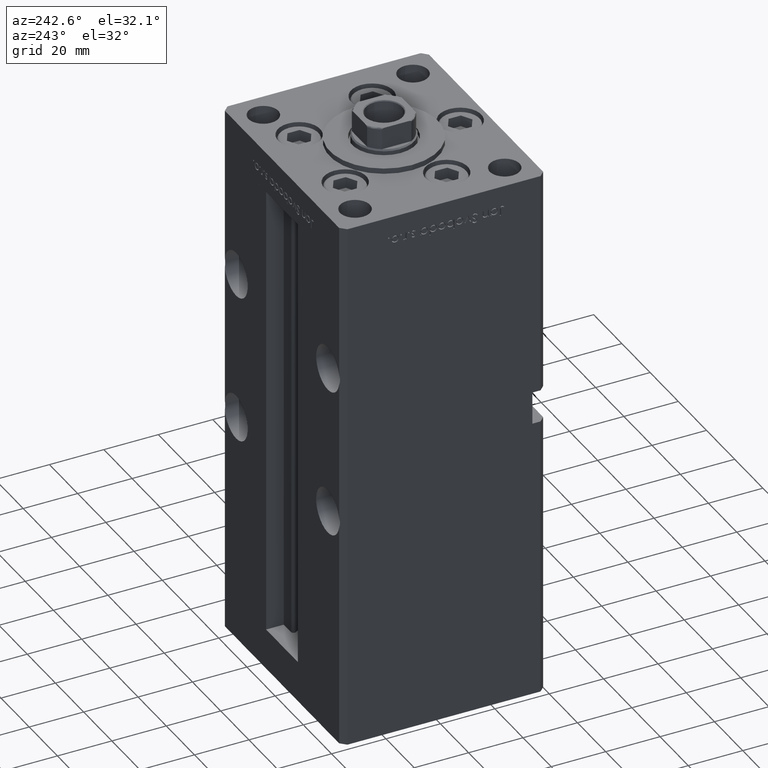
[diagram: clean part render]
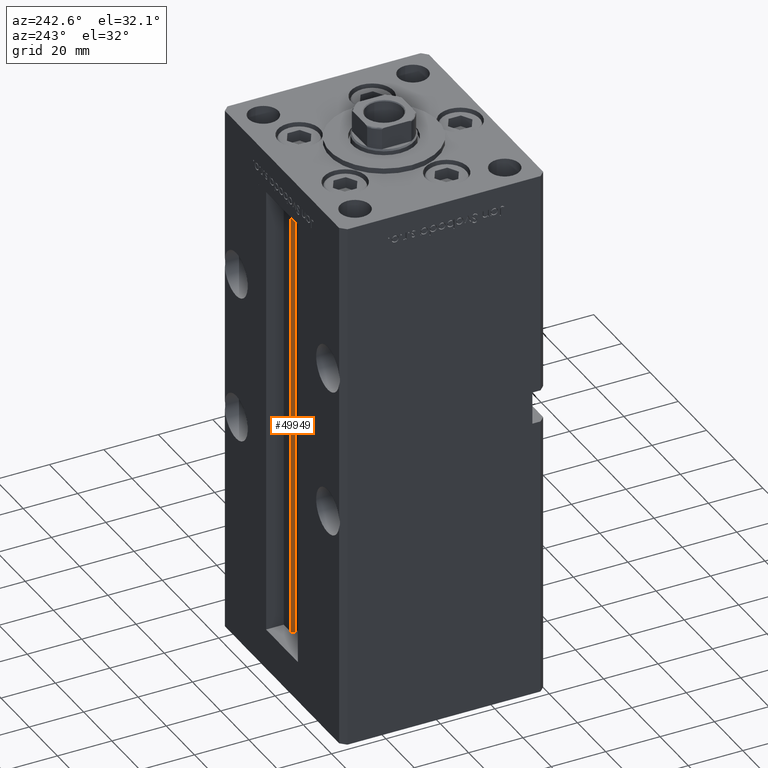
[diagram: same view with one face highlighted and labeled with its STEP entity id]
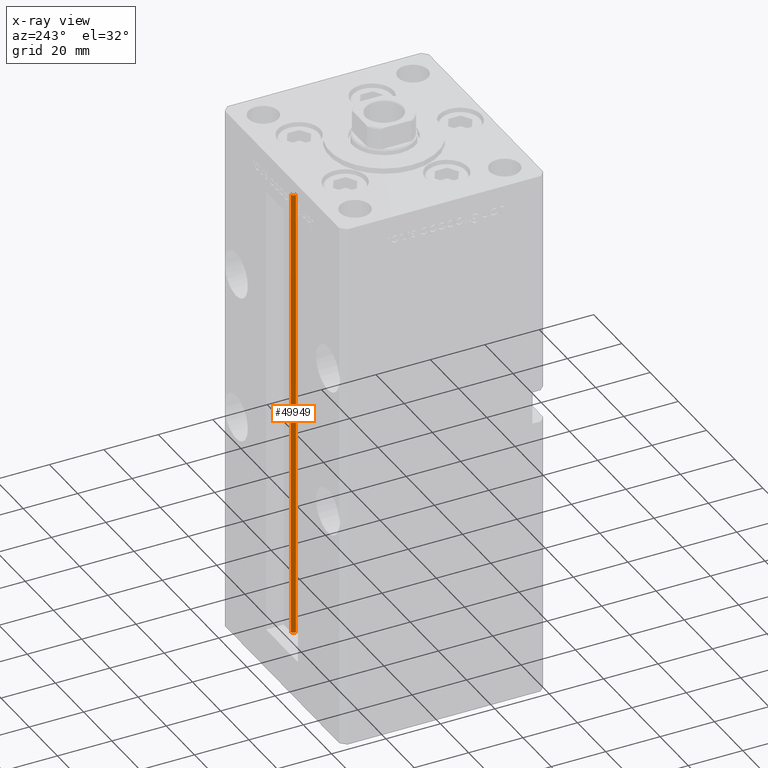
[diagram: x-ray of the same camera — body ghosted, the highlighted face saturated]
A machine part, auxiliary view. The second image highlights one B-rep face of the part: STEP entity #49949.
The next image is the same camera in x-ray: the body ghosted, the highlighted face saturated — about 0% of this face is hidden behind the body in this view.
In plain terms, the highlighted cylindrical surface (edge-blend (fillet) strip) has radius 0.9333 mm, axis along (0, 0, 1).
Its self-contained STEP definition (entity closure, byte-faithful):
#626 = EDGE_CURVE ( 'NONE', #45108, #2082, #40765, .T. ) ;
#1262 = CARTESIAN_POINT ( 'NONE',  ( 6.183333333333997928, 31.00000000000000000, 168.5000000000000000 ) ) ;
#1551 = EDGE_CURVE ( 'NONE', #45108, #45643, #43719, .T. ) ;
#2082 = VERTEX_POINT ( 'NONE', #23446 ) ;
#2455 = ORIENTED_EDGE ( 'NONE', *, *, #626, .T. ) ;
#3935 = DIRECTION ( 'NONE',  ( -0.000000000000000000, -0.000000000000000000, 1.000000000000000000 ) ) ;
#4536 = CARTESIAN_POINT ( 'NONE',  ( 6.183333333333997928, 30.06666666666599852, 0.000000000000000000 ) ) ;
#4976 = ORIENTED_EDGE ( 'NONE', *, *, #35113, .F. ) ;
#6074 = EDGE_CURVE ( 'NONE', #2082, #18319, #33440, .T. ) ;
#9440 = AXIS2_PLACEMENT_3D ( 'NONE', #34540, #42871, #45856 ) ;
#9927 = EDGE_LOOP ( 'NONE', ( #4976, #46097, #2455, #35063 ) ) ;
#11973 = VECTOR ( 'NONE', #3935, 1000.000000000000000 ) ;
#15853 = LINE ( 'NONE', #52968, #31324 ) ;
#16924 = DIRECTION ( 'NONE',  ( -0.000000000000000000, -0.000000000000000000, -1.000000000000000000 ) ) ;
#18319 = VERTEX_POINT ( 'NONE', #1262 ) ;
#20583 = AXIS2_PLACEMENT_3D ( 'NONE', #4536, #16924, #33299 ) ;
#21842 = FACE_OUTER_BOUND ( 'NONE', #9927, .T. ) ;
#22107 = DIRECTION ( 'NONE',  ( -0.000000000000000000, -0.000000000000000000, 1.000000000000000000 ) ) ;
#23446 = CARTESIAN_POINT ( 'NONE',  ( 5.375042956467944499, 29.59999999999899600, 168.5000000000000000 ) ) ;
#25504 = CARTESIAN_POINT ( 'NONE',  ( 5.375042956467947164, 29.59999999999899245, 0.000000000000000000 ) ) ;
#29207 = CARTESIAN_POINT ( 'NONE',  ( 6.183333333333997928, 31.00000000000000000, 0.000000000000000000 ) ) ;
#31324 = VECTOR ( 'NONE', #48668, 1000.000000000000000 ) ;
#32696 = CARTESIAN_POINT ( 'NONE',  ( 5.375042956467947164, 29.59999999999899245, 0.000000000000000000 ) ) ;
#33299 = DIRECTION ( 'NONE',  ( 1.000000000000000000, 0.000000000000000000, 0.000000000000000000 ) ) ;
#33440 = CIRCLE ( 'NONE', #9440, 0.9333333333340008142 ) ;
#34540 = CARTESIAN_POINT ( 'NONE',  ( 6.183333333333997928, 30.06666666666599852, 168.5000000000000000 ) ) ;
#35063 = ORIENTED_EDGE ( 'NONE', *, *, #6074, .T. ) ;
#35113 = EDGE_CURVE ( 'NONE', #45643, #18319, #15853, .T. ) ;
#37226 = DIRECTION ( 'NONE',  ( 1.000000000000000000, 0.000000000000000000, 0.000000000000000000 ) ) ;
#38229 = CYLINDRICAL_SURFACE ( 'NONE', #47961, 0.9333333333340008142 ) ;
#40765 = LINE ( 'NONE', #32696, #11973 ) ;
#42538 = CARTESIAN_POINT ( 'NONE',  ( 6.183333333333997928, 30.06666666666599852, 0.000000000000000000 ) ) ;
#42871 = DIRECTION ( 'NONE',  ( 0.000000000000000000, 0.000000000000000000, -1.000000000000000000 ) ) ;
#43719 = CIRCLE ( 'NONE', #20583, 0.9333333333340008142 ) ;
#45108 = VERTEX_POINT ( 'NONE', #25504 ) ;
#45643 = VERTEX_POINT ( 'NONE', #29207 ) ;
#45856 = DIRECTION ( 'NONE',  ( 1.000000000000000000, 0.000000000000000000, 0.000000000000000000 ) ) ;
#46097 = ORIENTED_EDGE ( 'NONE', *, *, #1551, .F. ) ;
#47961 = AXIS2_PLACEMENT_3D ( 'NONE', #42538, #22107, #37226 ) ;
#48668 = DIRECTION ( 'NONE',  ( -0.000000000000000000, -0.000000000000000000, 1.000000000000000000 ) ) ;
#49949 = ADVANCED_FACE ( 'NONE', ( #21842 ), #38229, .T. ) ;
#52968 = CARTESIAN_POINT ( 'NONE',  ( 6.183333333333997928, 31.00000000000000000, 0.000000000000000000 ) ) ;